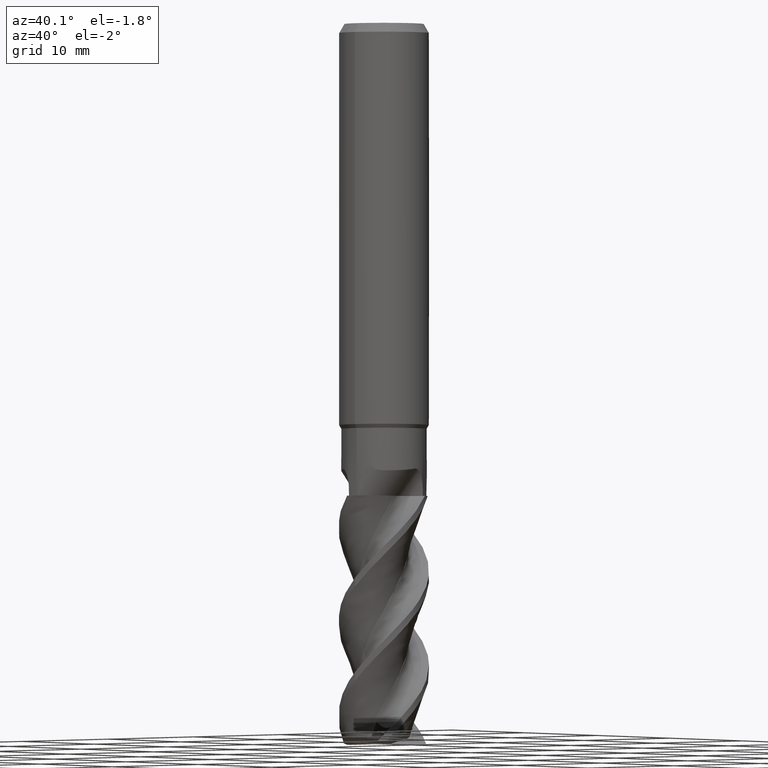
[diagram: clean part render]
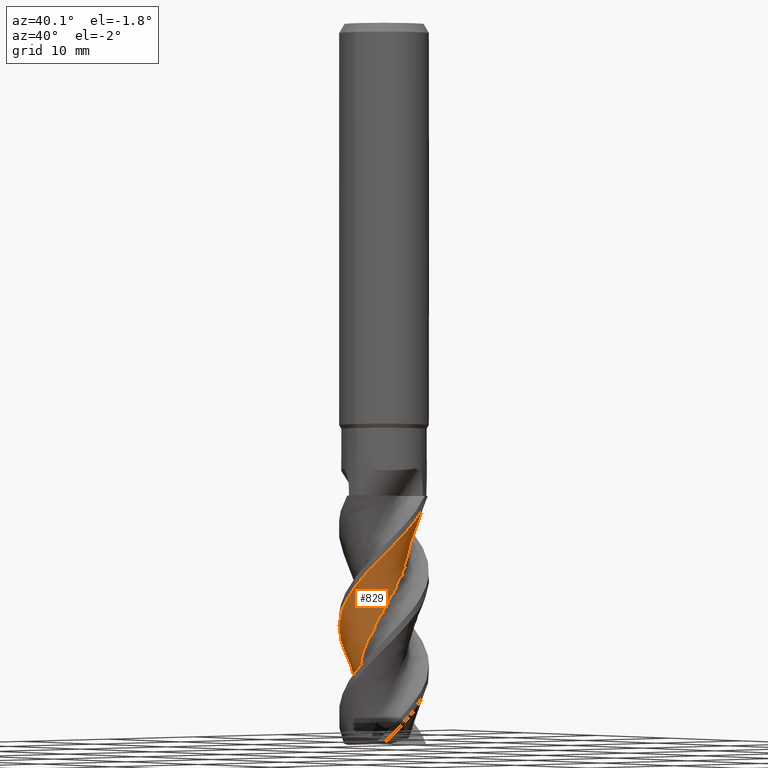
[diagram: same view with one face highlighted and labeled with its STEP entity id]
A machine part, auxiliary view. The second image highlights one B-rep face of the part: STEP entity #829.
In plain terms, the highlighted face is a freeform B-spline surface patch.
Its self-contained STEP definition (entity closure, byte-faithful):
#669=EDGE_CURVE('',#1279,#1359,#1627,.T.);
#707=EDGE_CURVE('',#1191,#891,#1669,.T.);
#729=VERTEX_POINT('',#1691);
#829=ADVANCED_FACE('',(#1797),#1798,.T.);
#891=VERTEX_POINT('',#1866);
#917=EDGE_CURVE('',#1231,#1175,#1897,.T.);
#1175=VERTEX_POINT('',#2174);
#1191=VERTEX_POINT('',#2193);
#1197=EDGE_CURVE('',#891,#729,#2199,.T.);
#1225=EDGE_CURVE('',#1359,#1191,#2232,.T.);
#1231=VERTEX_POINT('',#2238);
#1279=VERTEX_POINT('',#2293);
#1285=EDGE_CURVE('',#729,#1175,#2299,.T.);
#1327=EDGE_CURVE('',#1231,#1279,#2343,.T.);
#1359=VERTEX_POINT('',#2377);
#1627=B_SPLINE_CURVE_WITH_KNOTS('',3,(#4159,#4160,#4161,#4162,#4163,#4164,#4165,#4166,#4167,#4168,#4169,#4170,#4171,#4172,#4173,#4174,#4175,#4176,#4177,#4178,#4179,#4180,#4181,#4182,#4183,#4184,#4185,#4186,#4187,#4188,#4189,#4190,#4191,#4192,#4193,#4194,#4195,#4196,#4197,#4198,#4199,#4200,#4201,#4202,#4203,#4204,#4205,#4206,#4207,#4208,#4209,#4210),.UNSPECIFIED.,.F.,.F.,(4,2,2,2,2,2,2,2,2,2,2,2,2,2,2,2,2,2,2,2,2,2,2,2,2,4),(0.0,1.50812965564963,2.3019386029342,3.98700119968267,5.00262013638632,6.0516362022556,6.81230636880581,8.39051324420362,9.37146261800416,10.8609762145293,11.6836350831511,12.6656856658799,14.1349562226366,15.0286777271437,15.9162744446525,17.354946503498,18.2285737361278,19.1774514193152,20.1938867733299,20.5305683658628,21.151415034704,21.6692020742021,21.9225674008425,22.7656239546598,23.1177810033269,23.6173055241337),.UNSPECIFIED.);
#1669=B_SPLINE_CURVE_WITH_KNOTS('',3,(#4535,#4536,#4537,#4538,#4539,#4540,#4541,#4542,#4543,#4544,#4545,#4546,#4547,#4548,#4549,#4550,#4551,#4552,#4553,#4554,#4555,#4556,#4557,#4558,#4559,#4560,#4561,#4562,#4563,#4564,#4565,#4566,#4567,#4568,#4569,#4570,#4571,#4572,#4573,#4574,#4575,#4576,#4577,#4578,#4579,#4580,#4581,#4582,#4583,#4584,#4585,#4586),.UNSPECIFIED.,.F.,.F.,(4,2,2,2,2,2,2,2,2,2,2,2,2,2,2,2,2,2,2,2,2,2,2,2,2,4),(0.0,1.50812965564963,2.3019386029342,3.98700119968267,5.00262013638632,6.0516362022556,6.81230636880581,8.39051324420362,9.37146261800416,10.8609762145293,11.6836350831511,12.6656856658799,14.1349562226366,15.0286777271437,15.9162744446525,17.354946503498,18.2285737361278,19.1774514193152,20.1938867733299,20.5305683658628,21.151415034704,21.6692020742021,21.9225674008425,22.7656239546598,23.1177810033269,23.6173055241337),.UNSPECIFIED.);
#1691=CARTESIAN_POINT('',(0.418507498024745,2.48776908573931,-42.0));
#1797=FACE_OUTER_BOUND('',#5875,.T.);
#1798=B_SPLINE_SURFACE_WITH_KNOTS('',3,3,((#5876,#5877,#5878,#5879,#5880,#5881,#5882,#5883,#5884,#5885,#5886,#5887,#5888,#5889,#5890,#5891,#5892,#5893,#5894,#5895,#5896,#5897,#5898,#5899,#5900,#5901,#5902,#5903,#5904,#5905,#5906,#5907,#5908,#5909,#5910,#5911,#5912,#5913,#5914,#5915,#5916,#5917,#5918,#5919,#5920,#5921,#5922,#5923,#5924,#5925,#5926,#5927,#5928,#5929),(#5930,#5931,#5932,#5933,#5934,#5935,#5936,#5937,#5938,#5939,#5940,#5941,#5942,#5943,#5944,#5945,#5946,#5947,#5948,#5949,#5950,#5951,#5952,#5953,#5954,#5955,#5956,#5957,#5958,#5959,#5960,#5961,#5962,#5963,#5964,#5965,#5966,#5967,#5968,#5969,#5970,#5971,#5972,#5973,#5974,#5975,#5976,#5977,#5978,#5979,#5980,#5981,#5982,#5983),(#5984,#5985,#5986,#5987,#5988,#5989,#5990,#5991,#5992,#5993,#5994,#5995,#5996,#5997,#5998,#5999,#6000,#6001,#6002,#6003,#6004,#6005,#6006,#6007,#6008,#6009,#6010,#6011,#6012,#6013,#6014,#6015,#6016,#6017,#6018,#6019,#6020,#6021,#6022,#6023,#6024,#6025,#6026,#6027,#6028,#6029,#6030,#6031,#6032,#6033,#6034,#6035,#6036,#6037),(#6038,#6039,#6040,#6041,#6042,#6043,#6044,#6045,#6046,#6047,#6048,#6049,#6050,#6051,#6052,#6053,#6054,#6055,#6056,#6057,#6058,#6059,#6060,#6061,#6062,#6063,#6064,#6065,#6066,#6067,#6068,#6069,#6070,#6071,#6072,#6073,#6074,#6075,#6076,#6077,#6078,#6079,#6080,#6081,#6082,#6083,#6084,#6085,#6086,#6087,#6088,#6089,#6090,#6091),(#6092,#6093,#6094,#6095,#6096,#6097,#6098,#6099,#6100,#6101,#6102,#6103,#6104,#6105,#6106,#6107,#6108,#6109,#6110,#6111,#6112,#6113,#6114,#6115,#6116,#6117,#6118,#6119,#6120,#6121,#6122,#6123,#6124,#6125,#6126,#6127,#6128,#6129,#6130,#6131,#6132,#6133,#6134,#6135,#6136,#6137,#6138,#6139,#6140,#6141,#6142,#6143,#6144,#6145),(#6146,#6147,#6148,#6149,#6150,#6151,#6152,#6153,#6154,#6155,#6156,#6157,#6158,#6159,#6160,#6161,#6162,#6163,#6164,#6165,#6166,#6167,#6168,#6169,#6170,#6171,#6172,#6173,#6174,#6175,#6176,#6177,#6178,#6179,#6180,#6181,#6182,#6183,#6184,#6185,#6186,#6187,#6188,#6189,#6190,#6191,#6192,#6193,#6194,#6195,#6196,#6197,#6198,#6199),(#6200,#6201,#6202,#6203,#6204,#6205,#6206,#6207,#6208,#6209,#6210,#6211,#6212,#6213,#6214,#6215,#6216,#6217,#6218,#6219,#6220,#6221,#6222,#6223,#6224,#6225,#6226,#6227,#6228,#6229,#6230,#6231,#6232,#6233,#6234,#6235,#6236,#6237,#6238,#6239,#6240,#6241,#6242,#6243,#6244,#6245,#6246,#6247,#6248,#6249,#6250,#6251,#6252,#6253)),.UNSPECIFIED.,.F.,.F.,.F.,(4,1,1,1,4),(4,1,2,1,2,1,2,1,1,2,1,2,1,2,1,2,1,2,1,2,1,2,1,2,1,2,1,2,1,2,1,2,1,2,1,4),(-1.379010217161,-1.03425766287075,-0.689505108580499,-0.34475255429025,0.0),(0.0,0.596702157013119,1.19340431402624,1.79010647103936,2.38680862805248,3.58021294207871,4.77361725610495,5.66867049162463,6.56372372714431,7.16042588415743,8.35383019818367,9.5472345122099,10.7406388262361,11.9340431402624,13.1274474542886,14.3208517683149,15.5142560823411,16.7076603963673,17.9010647103936,19.0944690244198,20.287873338446,21.4812776524723,22.6746819664985,23.8680862805248,25.061490594551,26.2548949085772,27.4482992226035,28.6417035366297,29.8351078506559,31.0285121646822,32.2219164787084,33.4153207927347,34.6087251067609,35.8021294207871,36.9955337348134,38.1889380488396),.UNSPECIFIED.);
#1866=CARTESIAN_POINT('',(3.5963726505527,1.75080089340749,-42.0));
#1897=B_SPLINE_CURVE_WITH_KNOTS('',3,(#6508,#6509,#6510,#6511,#6512,#6513,#6514,#6515,#6516,#6517,#6518,#6519,#6520,#6521,#6522,#6523,#6524,#6525,#6526,#6527,#6528,#6529,#6530,#6531,#6532,#6533,#6534,#6535,#6536,#6537,#6538,#6539,#6540,#6541,#6542,#6543,#6544,#6545,#6546,#6547,#6548,#6549),.UNSPECIFIED.,.F.,.F.,(4,2,2,2,2,2,2,2,2,2,2,2,2,2,2,2,2,2,2,2,4),(0.0,1.96002317174539,2.79951533995057,4.84570067924374,5.63728254431896,7.64417012488495,8.09698610778007,9.81930928518283,10.8335941976609,12.7666662784117,12.8188379631395,14.1024985782909,14.7575771372344,15.1105821677996,16.5308145481242,17.1155967276321,18.6108530709952,19.2000942890906,20.0998360947661,20.3365268003646,21.0120244638364),.UNSPECIFIED.);
#2174=CARTESIAN_POINT('',(-0.15968039562833,2.25531079107162,-42.0));
#2193=CARTESIAN_POINT('',(2.39958012328243E-009,-3.99993702456214,-50.1083791086376));
#2199=B_SPLINE_CURVE_WITH_KNOTS('',3,(#9870,#9871,#9872,#9873,#9874,#9875,#9876,#9877,#9878,#9879),.UNSPECIFIED.,.F.,.F.,(4,2,2,2,4),(0.0,1.29194289761675,2.58380881293861,3.56196822561833,4.54010118664427),.UNSPECIFIED.);
#2232=B_SPLINE_CURVE_WITH_KNOTS('',3,(#9981,#9982,#9983,#9984,#9985,#9986,#9987,#9988,#9989,#9990,#9991,#9992,#9993,#9994,#9995,#9996,#9997,#9998,#9999,#10000,#10001,#10002,#10003,#10004,#10005,#10006,#10007,#10008,#10009,#10010,#10011,#10012,#10013,#10014,#10015,#10016,#10017,#10018,#10019,#10020,#10021,#10022,#10023,#10024,#10025,#10026,#10027,#10028,#10029,#10030,#10031,#10032),.UNSPECIFIED.,.F.,.F.,(4,2,2,2,2,2,2,2,2,2,2,2,2,2,2,2,2,2,2,2,2,2,2,2,2,4),(0.0,1.50812965564963,2.3019386029342,3.98700119968267,5.00262013638632,6.0516362022556,6.81230636880581,8.39051324420362,9.37146261800416,10.8609762145293,11.6836350831511,12.6656856658799,14.1349562226366,15.0286777271437,15.9162744446525,17.354946503498,18.2285737361278,19.1774514193152,20.1938867733299,20.5305683658628,21.151415034704,21.6692020742021,21.9225674008425,22.7656239546598,23.1177810033269,23.6173055241337),.UNSPECIFIED.);
#2238=CARTESIAN_POINT('',(-1.89454232177125,1.23379354579571,-63.4433879242293));
#2293=CARTESIAN_POINT('',(1.20785798603112,3.8132766733043,-63.8973059111609));
#2299=B_SPLINE_CURVE_WITH_KNOTS('',3,(#10145,#10146,#10147,#10148,#10149,#10150,#10151,#10152,#10153,#10154),.UNSPECIFIED.,.F.,.F.,(4,2,2,2,4),(0.0,1.29194289761675,2.58380881293861,3.56196822561833,4.54010118664427),.UNSPECIFIED.);
#2343=B_SPLINE_CURVE_WITH_KNOTS('',3,(#10363,#10364,#10365,#10366,#10367,#10368,#10369,#10370,#10371,#10372,#10373,#10374),.UNSPECIFIED.,.F.,.F.,(4,2,2,2,2,4),(0.0,1.18920040398311,2.29786910679007,3.46950499188715,4.30508404220789,5.21901623330974),.UNSPECIFIED.);
#2377=CARTESIAN_POINT('',(2.52708501185999E-010,3.99999434925726,-62.6624873406515));
#4159=CARTESIAN_POINT('',(1.21038747083636,3.81247454685829,-63.9));
#4160=CARTESIAN_POINT('',(0.8741518522595,3.91922118437871,-63.5418547880081));
#4161=CARTESIAN_POINT('',(0.522930222425139,3.98175344153569,-63.1796755850753));
#4162=CARTESIAN_POINT('',(-0.0223508028768974,4.0043567461851,-62.6393706705916));
#4163=CARTESIAN_POINT('',(-0.206804944346969,3.99901686122944,-62.4628641327863));
#4164=CARTESIAN_POINT('',(-0.787833898291767,3.94166996729279,-61.888839754451));
#4165=CARTESIAN_POINT('',(-1.17116222130024,3.84449225816149,-61.4876272981578));
#4166=CARTESIAN_POINT('',(-1.74810193530611,3.60543804762064,-60.8527715408216));
#4167=CARTESIAN_POINT('',(-1.95846976232267,3.49588875863075,-60.6141641997542));
#4168=CARTESIAN_POINT('',(-2.36687817437813,3.23396352618658,-60.1361353856852));
#4169=CARTESIAN_POINT('',(-2.55936504537128,3.08403181802421,-59.9034243646064));
#4170=CARTESIAN_POINT('',(-2.87163489390256,2.79034387585258,-59.4758169871923));
#4171=CARTESIAN_POINT('',(-2.99375279731445,2.65878134041894,-59.2945149359466));
#4172=CARTESIAN_POINT('',(-3.33944504067208,2.23270847696821,-58.7367625425849));
#4173=CARTESIAN_POINT('',(-3.5337674192665,1.91160153154349,-58.3560745385917));
#4174=CARTESIAN_POINT('',(-3.77276797293577,1.34938208187908,-57.754857315383));
#4175=CARTESIAN_POINT('',(-3.84460094901303,1.12899868311139,-57.5334403550166));
#4176=CARTESIAN_POINT('',(-3.97830168950724,0.549162795380832,-56.9402773000279));
#4177=CARTESIAN_POINT('',(-4.01114406294739,0.19190664192438,-56.5748745802272));
#4178=CARTESIAN_POINT('',(-3.98861496310292,-0.35945898627324,-56.0155868769391));
#4179=CARTESIAN_POINT('',(-3.96611241395141,-0.556192553200829,-55.8170760874915));
#4180=CARTESIAN_POINT('',(-3.88395562759898,-0.985465420164064,-55.3866537264021));
#4181=CARTESIAN_POINT('',(-3.8195147778647,-1.21181020293169,-55.1620247960107));
#4182=CARTESIAN_POINT('',(-3.60469480004076,-1.77046140263526,-54.5654319391119));
#4183=CARTESIAN_POINT('',(-3.43206709010472,-2.08492342030304,-54.2000748531259));
#4184=CARTESIAN_POINT('',(-3.09318275143932,-2.54530790777923,-53.6206823038342));
#4185=CARTESIAN_POINT('',(-2.9500477954842,-2.7101988017186,-53.4021096774569));
#4186=CARTESIAN_POINT('',(-2.63629933014022,-3.01615804488363,-52.9723344611993));
#4187=CARTESIAN_POINT('',(-2.46943937556779,-3.15443799908028,-52.7645982912688));
#4188=CARTESIAN_POINT('',(-1.99347052832356,-3.48631951099695,-52.1860875741831));
#4189=CARTESIAN_POINT('',(-1.6741518217168,-3.6501018846685,-51.8205540795434));
#4190=CARTESIAN_POINT('',(-1.13555303737836,-3.84144401231891,-51.2413176490097));
#4191=CARTESIAN_POINT('',(-0.92485169297897,-3.89774456184285,-51.0230502962612));
#4192=CARTESIAN_POINT('',(-0.473939283509634,-3.97891890055219,-50.5738545818159));
#4193=CARTESIAN_POINT('',(-0.16803568635221,-4.01299338034333,-50.2790784527439));
#4194=CARTESIAN_POINT('',(0.585977899683751,-3.9759960320667,-49.5174598058809));
#4195=CARTESIAN_POINT('',(0.972072038552208,-3.89982518032431,-49.1159233089956));
#4196=CARTESIAN_POINT('',(1.46437268169898,-3.72450818047864,-48.594021999962));
#4197=CARTESIAN_POINT('',(1.5854283558847,-3.67466966807075,-48.4648085888449));
#4198=CARTESIAN_POINT('',(1.92426379359227,-3.51505455111566,-48.1002429832503));
#4199=CARTESIAN_POINT('',(2.2402212755054,-3.34318691317403,-47.7518124381671));
#4200=CARTESIAN_POINT('',(2.86103180230965,-2.81962091543242,-46.9270328093645));
#4201=CARTESIAN_POINT('',(3.11113785946329,-2.54177191696936,-46.5470892186259));
#4202=CARTESIAN_POINT('',(3.42237593309564,-2.07853555391959,-45.9954055877984));
#4203=CARTESIAN_POINT('',(3.51224725554091,-1.92269400779076,-45.8234838900205));
#4204=CARTESIAN_POINT('',(3.85944313189888,-1.21351888569407,-45.0470642260816));
#4205=CARTESIAN_POINT('',(3.99808540545376,-0.616361653904153,-44.4202559801586));
#4206=CARTESIAN_POINT('',(4.00064441262114,0.240502201791341,-43.5721671007583));
#4207=CARTESIAN_POINT('',(3.97798095309816,0.488907116844436,-43.3349607499648));
#4208=CARTESIAN_POINT('',(3.86502777814506,1.09077390014403,-42.7257538633961));
#4209=CARTESIAN_POINT('',(3.7518929297841,1.43134578164647,-42.3604698335872));
#4210=CARTESIAN_POINT('',(3.59637265055272,1.75080089340747,-42.0));
#4535=CARTESIAN_POINT('',(1.21038747083636,3.81247454685829,-63.9));
#4536=CARTESIAN_POINT('',(0.8741518522595,3.91922118437871,-63.5418547880081));
#4537=CARTESIAN_POINT('',(0.522930222425139,3.98175344153569,-63.1796755850753));
#4538=CARTESIAN_POINT('',(-0.0223508028768974,4.0043567461851,-62.6393706705916));
#4539=CARTESIAN_POINT('',(-0.206804944346969,3.99901686122944,-62.4628641327863));
#4540=CARTESIAN_POINT('',(-0.787833898291767,3.94166996729279,-61.888839754451));
#4541=CARTESIAN_POINT('',(-1.17116222130024,3.84449225816149,-61.4876272981578));
#4542=CARTESIAN_POINT('',(-1.74810193530611,3.60543804762064,-60.8527715408216));
#4543=CARTESIAN_POINT('',(-1.95846976232267,3.49588875863075,-60.6141641997542));
#4544=CARTESIAN_POINT('',(-2.36687817437813,3.23396352618658,-60.1361353856852));
#4545=CARTESIAN_POINT('',(-2.55936504537128,3.08403181802421,-59.9034243646064));
#4546=CARTESIAN_POINT('',(-2.87163489390256,2.79034387585258,-59.4758169871923));
#4547=CARTESIAN_POINT('',(-2.99375279731445,2.65878134041894,-59.2945149359466));
#4548=CARTESIAN_POINT('',(-3.33944504067208,2.23270847696821,-58.7367625425849));
#4549=CARTESIAN_POINT('',(-3.5337674192665,1.91160153154349,-58.3560745385917));
#4550=CARTESIAN_POINT('',(-3.77276797293577,1.34938208187908,-57.754857315383));
#4551=CARTESIAN_POINT('',(-3.84460094901303,1.12899868311139,-57.5334403550166));
#4552=CARTESIAN_POINT('',(-3.97830168950724,0.549162795380832,-56.9402773000279));
#4553=CARTESIAN_POINT('',(-4.01114406294739,0.19190664192438,-56.5748745802272));
#4554=CARTESIAN_POINT('',(-3.98861496310292,-0.35945898627324,-56.0155868769391));
#4555=CARTESIAN_POINT('',(-3.96611241395141,-0.556192553200829,-55.8170760874915));
#4556=CARTESIAN_POINT('',(-3.88395562759898,-0.985465420164064,-55.3866537264021));
#4557=CARTESIAN_POINT('',(-3.8195147778647,-1.21181020293169,-55.1620247960107));
#4558=CARTESIAN_POINT('',(-3.60469480004076,-1.77046140263526,-54.5654319391119));
#4559=CARTESIAN_POINT('',(-3.43206709010472,-2.08492342030304,-54.2000748531259));
#4560=CARTESIAN_POINT('',(-3.09318275143932,-2.54530790777923,-53.6206823038342));
#4561=CARTESIAN_POINT('',(-2.9500477954842,-2.7101988017186,-53.4021096774569));
#4562=CARTESIAN_POINT('',(-2.63629933014022,-3.01615804488363,-52.9723344611993));
#4563=CARTESIAN_POINT('',(-2.46943937556779,-3.15443799908028,-52.7645982912688));
#4564=CARTESIAN_POINT('',(-1.99347052832356,-3.48631951099695,-52.1860875741831));
#4565=CARTESIAN_POINT('',(-1.6741518217168,-3.6501018846685,-51.8205540795434));
#4566=CARTESIAN_POINT('',(-1.13555303737836,-3.84144401231891,-51.2413176490097));
#4567=CARTESIAN_POINT('',(-0.92485169297897,-3.89774456184285,-51.0230502962612));
#4568=CARTESIAN_POINT('',(-0.473939283509634,-3.97891890055219,-50.5738545818159));
#4569=CARTESIAN_POINT('',(-0.16803568635221,-4.01299338034333,-50.2790784527439));
#4570=CARTESIAN_POINT('',(0.585977899683751,-3.9759960320667,-49.5174598058809));
#4571=CARTESIAN_POINT('',(0.972072038552208,-3.89982518032431,-49.1159233089956));
#4572=CARTESIAN_POINT('',(1.46437268169898,-3.72450818047864,-48.594021999962));
#4573=CARTESIAN_POINT('',(1.5854283558847,-3.67466966807075,-48.4648085888449));
#4574=CARTESIAN_POINT('',(1.92426379359227,-3.51505455111566,-48.1002429832503));
#4575=CARTESIAN_POINT('',(2.2402212755054,-3.34318691317403,-47.7518124381671));
#4576=CARTESIAN_POINT('',(2.86103180230965,-2.81962091543242,-46.9270328093645));
#4577=CARTESIAN_POINT('',(3.11113785946329,-2.54177191696936,-46.5470892186259));
#4578=CARTESIAN_POINT('',(3.42237593309564,-2.07853555391959,-45.9954055877984));
#4579=CARTESIAN_POINT('',(3.51224725554091,-1.92269400779076,-45.8234838900205));
#4580=CARTESIAN_POINT('',(3.85944313189888,-1.21351888569407,-45.0470642260816));
#4581=CARTESIAN_POINT('',(3.99808540545376,-0.616361653904153,-44.4202559801586));
#4582=CARTESIAN_POINT('',(4.00064441262114,0.240502201791341,-43.5721671007583));
#4583=CARTESIAN_POINT('',(3.97798095309816,0.488907116844436,-43.3349607499648));
#4584=CARTESIAN_POINT('',(3.86502777814506,1.09077390014403,-42.7257538633961));
#4585=CARTESIAN_POINT('',(3.7518929297841,1.43134578164647,-42.3604698335872));
#4586=CARTESIAN_POINT('',(3.59637265055272,1.75080089340747,-42.0));
#5875=EDGE_LOOP('',(#11004,#11005,#11006,#11007,#11008,#11009,#11010));
#5876=CARTESIAN_POINT('',(2.8849931731964,-2.99706763184026,-72.0));
#5877=CARTESIAN_POINT('',(2.92240958767133,-2.96097423754923,-71.8020813202914));
#5878=CARTESIAN_POINT('',(3.06594015749176,-2.82276050783471,-71.4062905601514));
#5879=CARTESIAN_POINT('',(3.32359760600317,-2.51229291029011,-71.0105017283267));
#5880=CARTESIAN_POINT('',(3.60103795574579,-2.09423510893513,-70.61462246108));
#5881=CARTESIAN_POINT('',(3.82280958906737,-1.68015121268389,-70.2187330544913));
#5882=CARTESIAN_POINT('',(3.96053057586659,-1.28438438829067,-69.8228827720323));
#5883=CARTESIAN_POINT('',(4.11969721874899,-0.699448480237136,-69.2291634437986));
#5884=CARTESIAN_POINT('',(4.21477081020318,0.0887673868397143,-68.4375244686398));
#5885=CARTESIAN_POINT('',(4.08270498064053,0.900199756865205,-67.6458884122936));
#5886=CARTESIAN_POINT('',(3.8468001680062,1.61259525637296,-66.9531593066781));
#5887=CARTESIAN_POINT('',(3.58328897988386,2.17530080389226,-66.3593807572199));
#5888=CARTESIAN_POINT('',(3.09220866691194,2.81641636323863,-65.5677109106745));
#5889=CARTESIAN_POINT('',(2.70627431810526,3.16483763355047,-65.0729294176987));
#5890=CARTESIAN_POINT('',(2.20092786844225,3.55414342423164,-64.4791848023263));
#5891=CARTESIAN_POINT('',(1.48266860804059,3.94736514396983,-63.6875020067818));
#5892=CARTESIAN_POINT('',(0.683476002120714,4.12411233065391,-62.8958552330718));
#5893=CARTESIAN_POINT('',(-0.164999296449228,4.1771653309235,-62.1041865201155));
#5894=CARTESIAN_POINT('',(-0.978992798415299,4.1012441212117,-61.3124981049296));
#5895=CARTESIAN_POINT('',(-1.73988549079389,3.80112759892892,-60.5208519008651));
#5896=CARTESIAN_POINT('',(-2.47349072591814,3.37016522208297,-59.7291850858659));
#5897=CARTESIAN_POINT('',(-3.10621747906796,2.85140218942379,-58.9374974814654));
#5898=CARTESIAN_POINT('',(-3.56891787448111,2.17680246595138,-58.1458509698202));
#5899=CARTESIAN_POINT('',(-3.93569171012349,1.40939832080377,-57.3541839688199));
#5900=CARTESIAN_POINT('',(-4.16984052214256,0.62562809525216,-56.5624964070769));
#5901=CARTESIAN_POINT('',(-4.17596313225788,-0.192381101712935,-55.7708499939011));
#5902=CARTESIAN_POINT('',(-4.05062076821258,-1.03371751962373,-54.9791829406379));
#5903=CARTESIAN_POINT('',(-3.8061798808445,-1.8143838909242,-54.1874953020299));
#5904=CARTESIAN_POINT('',(-3.35359897476936,-2.49580601125201,-53.3958488670571));
#5905=CARTESIAN_POINT('',(-2.77901144280356,-3.1230100832054,-52.6041818508217));
#5906=CARTESIAN_POINT('',(-2.13964875050445,-3.63330432390831,-51.8124942430695));
#5907=CARTESIAN_POINT('',(-1.38328759678152,-3.94489417099255,-51.0208478086118));
#5908=CARTESIAN_POINT('',(-0.556137843774475,-4.1432847124846,-50.2291807769718));
#5909=CARTESIAN_POINT('',(0.259290965584354,-4.20853475407957,-49.4374931628747));
#5910=CARTESIAN_POINT('',(1.06052750441267,-4.04363193081212,-48.6458467367247));
#5911=CARTESIAN_POINT('',(1.85710862229454,-3.74529688726285,-47.8541797150624));
#5912=CARTESIAN_POINT('',(2.56948168767498,-3.34316560611676,-47.0624920929035));
#5913=CARTESIAN_POINT('',(3.14131527453687,-2.75822557858918,-46.2708456519592));
#5914=CARTESIAN_POINT('',(3.63463889580865,-2.06530633567971,-45.4791786316819));
#5915=CARTESIAN_POINT('',(4.0001176073127,-1.33344884477022,-44.6874910452033));
#5916=CARTESIAN_POINT('',(4.14683505851814,-0.528636866857343,-43.8958445795726));
#5917=CARTESIAN_POINT('',(4.16804481245918,0.321764012653659,-43.1041774417391));
#5918=CARTESIAN_POINT('',(4.06148620294524,1.13279750277838,-42.312489753647));
#5919=CARTESIAN_POINT('',(3.73289269576683,1.88179784161322,-41.5208436454148));
#5920=CARTESIAN_POINT('',(3.27479381990849,2.59841922816568,-40.7291772343719));
#5921=CARTESIAN_POINT('',(2.73265145984131,3.211205045175,-39.9374897221193));
#5922=CARTESIAN_POINT('',(2.04107199234359,3.6482319949096,-39.1458417326105));
#5923=CARTESIAN_POINT('',(1.260621368899,3.98582600081281,-38.3541723630751));
#5924=CARTESIAN_POINT('',(0.46903430206257,4.19034798525545,-37.5624849927617));
#5925=CARTESIAN_POINT('',(-0.349883444735772,4.16585144646725,-36.7708438884744));
#5926=CARTESIAN_POINT('',(-1.18859483421239,4.00808628305623,-35.9791834142589));
#5927=CARTESIAN_POINT('',(-1.95977090177284,3.73298195922747,-35.1874939124835));
#5928=CARTESIAN_POINT('',(-2.61628087445462,3.25970504587531,-34.3958454903467));
#5929=CARTESIAN_POINT('',(-2.9147415679886,2.96632514949731,-34.0000165176675));
#5930=CARTESIAN_POINT('',(3.05673647652492,-2.65803045875232,-72.0));
#5931=CARTESIAN_POINT('',(3.08881265138201,-2.61923192977791,-71.8020532782205));
#5932=CARTESIAN_POINT('',(3.21451129292511,-2.47213389690455,-71.4064025136208));
#5933=CARTESIAN_POINT('',(3.43748398654902,-2.14900118127136,-71.010787631407));
#5934=CARTESIAN_POINT('',(3.67115088266584,-1.72002298031144,-70.6147640019621));
#5935=CARTESIAN_POINT('',(3.8509357996161,-1.29955705248755,-70.2186859232659));
#5936=CARTESIAN_POINT('',(3.95039645889868,-0.904013822762281,-69.8227725339661));
#5937=CARTESIAN_POINT('',(4.05421306388445,-0.323253299499854,-69.2291526250204));
#5938=CARTESIAN_POINT('',(4.07819090773911,0.449000099837652,-68.4376082666843));
#5939=CARTESIAN_POINT('',(3.88024383333384,1.22419977529714,-67.6460819923197));
#5940=CARTESIAN_POINT('',(3.59040247033283,1.89465776045226,-66.9532850013498));
#5941=CARTESIAN_POINT('',(3.28647682923401,2.4174863387445,-66.3594105296844));
#5942=CARTESIAN_POINT('',(2.75509513244511,2.99656856432227,-65.5677303288982));
#5943=CARTESIAN_POINT('',(2.35096807034467,3.30112812364852,-65.0729837887939));
#5944=CARTESIAN_POINT('',(1.82759365951875,3.6351684558251,-64.4792580231333));
#5945=CARTESIAN_POINT('',(1.09737839187765,3.9544115074051,-63.6875213360801));
#5946=CARTESIAN_POINT('',(0.307424506233549,4.0568221356504,-62.8959439642783));
#5947=CARTESIAN_POINT('',(-0.519742700908749,4.03539416655039,-62.1042696481766));
#5948=CARTESIAN_POINT('',(-1.30229451840053,3.89157186401081,-61.3125082659024));
#5949=CARTESIAN_POINT('',(-2.01399210859671,3.53502510625387,-60.5209330384195));
#5950=CARTESIAN_POINT('',(-2.68822888318827,3.05420360555053,-59.7292668893013));
#5951=CARTESIAN_POINT('',(-3.25685804398001,2.49672222913092,-58.9375090660264));
#5952=CARTESIAN_POINT('',(-3.64720179959939,1.80288309146156,-58.1459325703833));
#5953=CARTESIAN_POINT('',(-3.93689597215821,1.02737492674022,-57.354265666829));
#5954=CARTESIAN_POINT('',(-4.09627283837273,0.247372474786573,-56.5625080290744));
#5955=CARTESIAN_POINT('',(-4.03165785729376,-0.546104581153464,-55.7709319457535));
#5956=CARTESIAN_POINT('',(-3.83788833590389,-1.35103197998053,-54.9792647950443));
#5957=CARTESIAN_POINT('',(-3.53357813065847,-2.08674015487314,-54.1875068174522));
#5958=CARTESIAN_POINT('',(-3.03609232162545,-2.7082531647644,-53.3959306451377));
#5959=CARTESIAN_POINT('',(-2.42515952271145,-3.26699736584365,-52.6042636613844));
#5960=CARTESIAN_POINT('',(-1.76132719779889,-3.70653314515291,-51.8125058190114));
#5961=CARTESIAN_POINT('',(-1.00126421021923,-3.94334408196106,-51.020929654302));
#5962=CARTESIAN_POINT('',(-0.182291229851993,-4.06465760103049,-50.2292625901799));
#5963=CARTESIAN_POINT('',(0.613831773969868,-4.05756964199043,-49.4375047232473));
#5964=CARTESIAN_POINT('',(1.37629974459137,-3.8286152328714,-48.6459285987414));
#5965=CARTESIAN_POINT('',(2.12298067964239,-3.47096937889954,-47.8542615770791));
#5966=CARTESIAN_POINT('',(2.77888072606792,-3.01968200437155,-47.0625036916268));
#5967=CARTESIAN_POINT('',(3.28274698846402,-2.40334351065436,-46.2709274879366));
#5968=CARTESIAN_POINT('',(3.70153007730039,-1.68918264963693,-45.4792604676593));
#5969=CARTESIAN_POINT('',(3.99269955231624,-0.948176368775575,-44.6875026913733));
#5970=CARTESIAN_POINT('',(4.06551075130253,-0.155366444115203,-43.8959264074791));
#5971=CARTESIAN_POINT('',(4.01304804390771,0.670934030622876,-43.1042589123436));
#5972=CARTESIAN_POINT('',(3.83978389471107,1.44797501234763,-42.3125008373635));
#5973=CARTESIAN_POINT('',(3.45665803726552,2.14568875596107,-41.520926061539));
#5974=CARTESIAN_POINT('',(2.95098438161989,2.80112763014299,-40.7292615669342));
#5975=CARTESIAN_POINT('',(2.37255912064148,3.34840909416161,-39.9375037837582));
#5976=CARTESIAN_POINT('',(1.66447451971821,3.71240189905105,-39.1459208353621));
#5977=CARTESIAN_POINT('',(0.87882307249493,3.9726825859633,-38.3542442548222));
#5978=CARTESIAN_POINT('',(0.0937993348992279,4.10265871673381,-37.5624888174572));
#5979=CARTESIAN_POINT('',(-0.697919626299012,4.00829495443222,-36.7709351394703));
#5980=CARTESIAN_POINT('',(-1.49752989634323,3.78333842960754,-35.979292855176));
#5981=CARTESIAN_POINT('',(-2.22140341746646,3.45012756992181,-35.1875194353338));
#5982=CARTESIAN_POINT('',(-2.81692820582236,2.93468078666018,-34.3959078951403));
#5983=CARTESIAN_POINT('',(-3.08104901718555,2.62458870698934,-34.0000728808087));
#5984=CARTESIAN_POINT('',(3.28217883106289,-1.92026436313011,-72.0));
#5985=CARTESIAN_POINT('',(3.30263431453089,-1.87791489809233,-71.8020009420561));
#5986=CARTESIAN_POINT('',(3.38958132046001,-1.71925686485717,-71.4066114576921));
#5987=CARTESIAN_POINT('',(3.53878493049656,-1.38286902220744,-71.0113212246698));
#5988=CARTESIAN_POINT('',(3.68111486707731,-0.947288105619674,-70.6150281666361));
#5989=CARTESIAN_POINT('',(3.77471544444227,-0.528673175952914,-70.2185979607475));
#5990=CARTESIAN_POINT('',(3.79774268563915,-0.14689358178066,-69.8225667899253));
#5991=CARTESIAN_POINT('',(3.79232610326453,0.406252596443882,-69.2291324369838));
#5992=CARTESIAN_POINT('',(3.67968571196144,1.1218401260142,-68.4377646614483));
#5993=CARTESIAN_POINT('',(3.36260313572991,1.80165334701806,-67.6464432785252));
#5994=CARTESIAN_POINT('',(2.97949835257297,2.36947402317733,-66.9535195916753));
#5995=CARTESIAN_POINT('',(2.60863293725907,2.79849221730007,-66.3594660947617));
#5996=CARTESIAN_POINT('',(2.01824912483558,3.23949617206441,-65.5677665698732));
#5997=CARTESIAN_POINT('',(1.59300718527589,3.45001112565282,-65.0730852639677));
#5998=CARTESIAN_POINT('',(1.05281645579505,3.66725954125146,-64.4793946785276));
#5999=CARTESIAN_POINT('',(0.324440397545746,3.83440217717803,-63.6875574136088));
#6000=CARTESIAN_POINT('',(-0.421165475467666,3.7913735407902,-62.8961095624546));
#6001=CARTESIAN_POINT('',(-1.17979863229181,3.62841827235698,-62.1044247986951));
#6002=CARTESIAN_POINT('',(-1.87584184691892,3.35975380122778,-61.3125272378856));
#6003=CARTESIAN_POINT('',(-2.46952079159659,2.90748282540866,-60.5210844480187));
#6004=CARTESIAN_POINT('',(-3.00768180861722,2.34761857522853,-59.7294195838109));
#6005=CARTESIAN_POINT('',(-3.43465565996733,1.73501923097328,-58.9375306738999));
#6006=CARTESIAN_POINT('',(-3.67360763513249,1.02788971752679,-58.14608486997));
#6007=CARTESIAN_POINT('',(-3.80634093046183,0.263003133386899,-57.3544181387319));
#6008=CARTESIAN_POINT('',(-3.81750365405885,-0.483440336735202,-56.5625297200422));
#6009=CARTESIAN_POINT('',(-3.61996935619615,-1.20323891664839,-55.7710849003343));
#6010=CARTESIAN_POINT('',(-3.30203452978319,-1.91154116820153,-54.9794175594864));
#6011=CARTESIAN_POINT('',(-2.8936481735943,-2.5365065106771,-54.1875283051801));
#6012=CARTESIAN_POINT('',(-2.32721495218721,-3.02258686824793,-53.3960832834235));
#6013=CARTESIAN_POINT('',(-1.66742809158355,-3.43177826365338,-52.6044163359532));
#6014=CARTESIAN_POINT('',(-0.979289987502677,-3.72129786484133,-51.8125274358845));
#6015=CARTESIAN_POINT('',(-0.237851072837686,-3.80728098387813,-51.021082394468));
#6016=CARTESIAN_POINT('',(0.537943719198213,-3.77730538218334,-50.2294152939873));
#6017=CARTESIAN_POINT('',(1.27028260828831,-3.63227863422201,-49.4375263099627));
#6018=CARTESIAN_POINT('',(1.93292982674607,-3.28873023027771,-48.6460813472098));
#6019=CARTESIAN_POINT('',(2.55917956375053,-2.82984514416306,-47.8544143941361));
#6020=CARTESIAN_POINT('',(3.08503869667235,-2.29991313545168,-47.0625253205088));
#6021=CARTESIAN_POINT('',(3.44205880675635,-1.64444147612159,-46.2710802244501));
#6022=CARTESIAN_POINT('',(3.70438605943303,-0.913746462172689,-45.4794131994782));
#6023=CARTESIAN_POINT('',(3.84377112786475,-0.180308199415672,-44.6875244475775));
#6024=CARTESIAN_POINT('',(3.77296534174768,0.562777507809874,-43.8960790881001));
#6025=CARTESIAN_POINT('',(3.58156401938414,1.31524138204266,-43.104411003074));
#6026=CARTESIAN_POINT('',(3.28673632957685,2.00108886639352,-42.3125214926213));
#6027=CARTESIAN_POINT('',(2.81240949041901,2.57726204227273,-41.5210799015512));
#6028=CARTESIAN_POINT('',(2.23289260696068,3.09379257800074,-40.7294189375103));
#6029=CARTESIAN_POINT('',(1.60470927703316,3.49745319961756,-39.9375300147686));
#6030=CARTESIAN_POINT('',(0.889037993717682,3.70965107256386,-39.1460685171719));
#6031=CARTESIAN_POINT('',(0.119895133645489,3.81351405634203,-38.3543783808744));
#6032=CARTESIAN_POINT('',(-0.626057891078445,3.79670118948772,-37.5624959942119));
#6033=CARTESIAN_POINT('',(-1.33906868938732,3.5720867470127,-36.7711054169932));
#6034=CARTESIAN_POINT('',(-2.03710037386258,3.22637319073872,-35.9794971379968));
#6035=CARTESIAN_POINT('',(-2.64615647978408,2.79342725009902,-35.1875671175961));
#6036=CARTESIAN_POINT('',(-3.10504869081945,2.21487701224912,-34.3960242401265));
#6037=CARTESIAN_POINT('',(-3.29468152100392,1.88331668585398,-34.0001780738934));
#6038=CARTESIAN_POINT('',(3.22642972929685,-0.764386492587032,-72.0));
#6039=CARTESIAN_POINT('',(3.22867879652344,-0.722915214450101,-71.801942898766));
#6040=CARTESIAN_POINT('',(3.25505529362475,-0.56758287073971,-71.4068431860021));
#6041=CARTESIAN_POINT('',(3.29339105410769,-0.249880443619955,-71.0119130052929));
#6042=CARTESIAN_POINT('',(3.30342337981473,0.148716429880288,-70.6153211367236));
#6043=CARTESIAN_POINT('',(3.27628668590456,0.521024600703803,-70.2185004062316));
#6044=CARTESIAN_POINT('',(3.19838246727341,0.844622639395658,-69.8223386110116));
#6045=CARTESIAN_POINT('',(3.05274948009644,1.30340396836301,-69.2291100458886));
#6046=CARTESIAN_POINT('',(2.7759587062648,1.86972790210387,-68.4379381103792));
#6047=CARTESIAN_POINT('',(2.33903839738532,2.35447488136144,-67.6468439636695));
#6048=CARTESIAN_POINT('',(1.87629836042342,2.7301089953486,-66.9537797618376));
#6049=CARTESIAN_POINT('',(1.45848659397054,2.9927480659579,-66.3595277222948));
#6050=CARTESIAN_POINT('',(0.854805622971884,3.2088993445464,-65.567806762596));
#6051=CARTESIAN_POINT('',(0.447431974187719,3.27593665676328,-65.0731978046594));
#6052=CARTESIAN_POINT('',(-0.0572893704975033,3.31977185261282,-64.479546235733));
#6053=CARTESIAN_POINT('',(-0.705957413962973,3.27311041237994,-63.6875974233948));
#6054=CARTESIAN_POINT('',(-1.31521809233119,3.0472329148676,-62.8962932222817));
#6055=CARTESIAN_POINT('',(-1.9053432845234,2.7192134972129,-62.1045968641124));
#6056=CARTESIAN_POINT('',(-2.41596089258606,2.31815377236834,-61.312548271132));
#6057=CARTESIAN_POINT('',(-2.79449025596425,1.79057132757614,-60.5212523871835));
#6058=CARTESIAN_POINT('',(-3.10046562362911,1.18810117242556,-59.7295889102715));
#6059=CARTESIAN_POINT('',(-3.29950588637017,0.569501839509505,-58.9375546485857));
#6060=CARTESIAN_POINT('',(-3.31798390669674,-0.0796389996541078,-58.1462537750594));
#6061=CARTESIAN_POINT('',(-3.23450347854714,-0.749954438122141,-57.3545872394173));
#6062=CARTESIAN_POINT('',(-3.05343002069758,-1.37387791906762,-56.5625537753546));
#6063=CARTESIAN_POINT('',(-2.70559246391609,-1.92226964954161,-55.7712545338172));
#6064=CARTESIAN_POINT('',(-2.26134683700444,-2.43120685054478,-54.9795869826316));
#6065=CARTESIAN_POINT('',(-1.76216902627098,-2.84706039463761,-54.1875521474759));
#6066=CARTESIAN_POINT('',(-1.16705655178811,-3.10698118661127,-53.3962525433219));
#6067=CARTESIAN_POINT('',(-0.514116939409905,-3.28026486829951,-52.6045856822334));
#6068=CARTESIAN_POINT('',(0.132281479932222,-3.34566804682602,-51.8125513966466));
#6069=CARTESIAN_POINT('',(0.770960604849383,-3.22815326066844,-51.0212517940523));
#6070=CARTESIAN_POINT('',(1.40909599556425,-3.00647685701149,-50.2295846460009));
#6071=CARTESIAN_POINT('',(1.9814522132052,-2.69904415715662,-49.4375502384177));
#6072=CARTESIAN_POINT('',(2.44507523431269,-2.24431787661112,-48.6462507804489));
#6073=CARTESIAN_POINT('',(2.84997332478988,-1.70355829422974,-47.8545838473141));
#6074=CARTESIAN_POINT('',(3.15236869733769,-1.12852294201311,-47.062549321251));
#6075=CARTESIAN_POINT('',(3.28223067686473,-0.492250367307317,-46.2712496178389));
#6076=CARTESIAN_POINT('',(3.31528994251638,0.182468200293094,-45.47958258471));
#6077=CARTESIAN_POINT('',(3.24422144517776,0.828270687212801,-44.6875485665131));
#6078=CARTESIAN_POINT('',(2.99586512563443,1.42834487217008,-43.8962484389087));
#6079=CARTESIAN_POINT('',(2.64574264105399,2.00612702142818,-43.1045796579039));
#6080=CARTESIAN_POINT('',(2.22552362487924,2.5015969027781,-42.3125444171025));
#6081=CARTESIAN_POINT('',(1.68405679510472,2.85994141066029,-41.5212505044975));
#6082=CARTESIAN_POINT('',(1.07071077373468,3.14292326109813,-40.7295934816049));
#6083=CARTESIAN_POINT('',(0.445091087787806,3.31859269883001,-39.9375591188811));
#6084=CARTESIAN_POINT('',(-0.204334612838617,3.31263907020831,-39.1462322650329));
#6085=CARTESIAN_POINT('',(-0.870870386242506,3.20403978057635,-38.3545271710418));
#6086=CARTESIAN_POINT('',(-1.48724443361213,2.99979707050399,-37.5625039421133));
#6087=CARTESIAN_POINT('',(-2.02310036593935,2.63119690910717,-36.7712942474712));
#6088=CARTESIAN_POINT('',(-2.51650162233313,2.16649564780211,-35.979723712389));
#6089=CARTESIAN_POINT('',(-2.91289422702013,1.65095274506422,-35.1876199544684));
#6090=CARTESIAN_POINT('',(-3.1468955302973,1.05258211413542,-34.3961533468577));
#6091=CARTESIAN_POINT('',(-3.22048175756619,0.72847643913083,-34.0002947379134));
#6092=CARTESIAN_POINT('',(2.78332773649456,0.304652319562712,-72.0));
#6093=CARTESIAN_POINT('',(2.76873822514422,0.339144158236014,-71.8019121494092));
#6094=CARTESIAN_POINT('',(2.73923141940794,0.470876450703319,-71.4069659480463));
#6095=CARTESIAN_POINT('',(2.6795362909735,0.733524695235322,-71.0122265098393));
#6096=CARTESIAN_POINT('',(2.57755274108925,1.05260275223455,-70.6154763428677));
#6097=CARTESIAN_POINT('',(2.45243108234494,1.34052474036429,-70.2184487252308));
#6098=CARTESIAN_POINT('',(2.29919566815525,1.57525388833864,-69.8222177289212));
#6099=CARTESIAN_POINT('',(2.05348589128343,1.89783510681619,-69.2290981852508));
#6100=CARTESIAN_POINT('',(1.67264554210549,2.26820127227982,-68.4380299998534));
#6101=CARTESIAN_POINT('',(1.18886056030924,2.5288579356743,-67.6470562272504));
#6102=CARTESIAN_POINT('',(0.716120155207489,2.69669852399896,-66.953917595384));
#6103=CARTESIAN_POINT('',(0.310352185301363,2.78688060807919,-66.3595603677317));
#6104=CARTESIAN_POINT('',(-0.229854033677346,2.78691312788543,-65.5678280570427));
#6105=CARTESIAN_POINT('',(-0.571921849987167,2.7249520066043,-65.0732574226738));
#6106=CARTESIAN_POINT('',(-0.984654873185865,2.61756260188282,-64.4796265299563));
#6107=CARTESIAN_POINT('',(-1.48604824766838,2.3966124140119,-63.687618615863));
#6108=CARTESIAN_POINT('',(-1.90519037066517,2.04472103644719,-62.8963905212915));
#6109=CARTESIAN_POINT('',(-2.28093671300855,1.61829573289833,-62.1046880161826));
#6110=CARTESIAN_POINT('',(-2.57229360947722,1.15529452198022,-61.3125594134356));
#6111=CARTESIAN_POINT('',(-2.7228785704868,0.629541525382986,-60.5213413587032));
#6112=CARTESIAN_POINT('',(-2.79592859785587,0.0654397637214252,-59.7296786105541));
#6113=CARTESIAN_POINT('',(-2.77841653507773,-0.481775707021647,-58.9375673521727));
#6114=CARTESIAN_POINT('',(-2.60898818249152,-1.00182941166549,-58.1463432530626));
#6115=CARTESIAN_POINT('',(-2.35397416020723,-1.51006707214353,-57.3546768253239));
#6116=CARTESIAN_POINT('',(-2.03337948551239,-1.95371139397665,-56.5625665260768));
#6117=CARTESIAN_POINT('',(-1.60200824463637,-2.28998443146028,-55.7713443836149));
#6118=CARTESIAN_POINT('',(-1.10625852092229,-2.56859777773184,-54.9796767534464));
#6119=CARTESIAN_POINT('',(-0.592300367969398,-2.75695798490431,-54.1875647761473));
#6120=CARTESIAN_POINT('',(-0.0466271118586825,-2.79433157958003,-53.3963421995328));
#6121=CARTESIAN_POINT('',(0.520142320005751,-2.74789967761168,-52.6046754079965));
#6122=CARTESIAN_POINT('',(1.05151568202303,-2.61647690191222,-51.8125640883401));
#6123=CARTESIAN_POINT('',(1.52470746501774,-2.3421636636853,-51.0213415280825));
#6124=CARTESIAN_POINT('',(1.96849587303598,-1.98658633057583,-50.2296743709885));
#6125=CARTESIAN_POINT('',(2.33539532946974,-1.58036841790124,-49.4375629130265));
#6126=CARTESIAN_POINT('',(2.57412953133461,-1.08826551654342,-48.6463405360487));
#6127=CARTESIAN_POINT('',(2.74302800947837,-0.545254460379558,-47.8546736221485));
#6128=CARTESIAN_POINT('',(2.81986281646197,-0.00328940822419876,-47.0625620481753));
#6129=CARTESIAN_POINT('',(2.74241841456544,0.538144743573247,-46.2713393280197));
#6130=CARTESIAN_POINT('',(2.57861458012739,1.08269805129238,-45.4796723478536));
#6131=CARTESIAN_POINT('',(2.33908995469827,1.57489677668833,-44.6875613396362));
#6132=CARTESIAN_POINT('',(1.97195930321233,1.98036884769408,-43.8963381350719));
#6133=CARTESIAN_POINT('',(1.53148720263879,2.34010520291299,-43.104669025573));
#6134=CARTESIAN_POINT('',(1.05759214888522,2.61402070333392,-42.312556550687));
#6135=CARTESIAN_POINT('',(0.52655093007357,2.74466089702157,-41.5213408860422));
#6136=CARTESIAN_POINT('',(-0.0397056080522245,2.79640069918519,-40.7296859471661));
#6137=CARTESIAN_POINT('',(-0.585862123535232,2.75835770564682,-39.9375745134541));
#6138=CARTESIAN_POINT('',(-1.09921439708975,2.56947398044677,-39.1463190625608));
#6139=CARTESIAN_POINT('',(-1.5973770101864,2.2955876266833,-38.3546059455009));
#6140=CARTESIAN_POINT('',(-2.02845249305966,1.95873289515713,-37.5625081671542));
#6141=CARTESIAN_POINT('',(-2.34891490353801,1.51448750002091,-36.771394303838));
#6142=CARTESIAN_POINT('',(-2.60951154057603,1.00695387162908,-35.9798437233396));
#6143=CARTESIAN_POINT('',(-2.77783739949364,0.485543368422402,-35.1876479736379));
#6144=CARTESIAN_POINT('',(-2.7934794103983,-0.0554790800479337,-34.3962217076268));
#6145=CARTESIAN_POINT('',(-2.7603651953222,-0.33335033734329,-34.0003565425296));
#6146=CARTESIAN_POINT('',(2.26444296237709,0.875525469846125,-72.0));
#6147=CARTESIAN_POINT('',(2.24086156552669,0.901844234104307,-71.801912261879));
#6148=CARTESIAN_POINT('',(2.18161125106212,1.00617786280497,-71.4069654990797));
#6149=CARTESIAN_POINT('',(2.07281665124248,1.21219625323405,-71.0122253633858));
#6150=CARTESIAN_POINT('',(1.91847191464631,1.45614399732504,-70.6154757752465));
#6151=CARTESIAN_POINT('',(1.75088883740919,1.66904344943585,-70.2184489132746));
#6152=CARTESIAN_POINT('',(1.57041506402206,1.83104214566234,-69.8222181729269));
#6153=CARTESIAN_POINT('',(1.29260648846572,2.04562140415114,-69.229098224746));
#6154=CARTESIAN_POINT('',(0.89063977336076,2.26959847371701,-68.4380296618743));
#6155=CARTESIAN_POINT('',(0.427945232895551,2.37910094525332,-67.6470554587594));
#6156=CARTESIAN_POINT('',(-0.00424809699754647,2.41431837791307,-66.9539170855107));
#6157=CARTESIAN_POINT('',(-0.36360071521893,2.39901461987326,-66.3595602501654));
#6158=CARTESIAN_POINT('',(-0.815285649508959,2.27775662096237,-65.5678279751817));
#6159=CARTESIAN_POINT('',(-1.08731383307796,2.14957691575102,-65.0732572089583));
#6160=CARTESIAN_POINT('',(-1.40825849486849,1.96803646952173,-64.4796262277085));
#6161=CARTESIAN_POINT('',(-1.77797984121301,1.67092224488973,-63.6876185485844));
#6162=CARTESIAN_POINT('',(-2.04944726261833,1.28280835146451,-62.8963901536387));
#6163=CARTESIAN_POINT('',(-2.26851878314289,0.842948277833656,-62.1046876946661));
#6164=CARTESIAN_POINT('',(-2.40835433358861,0.39049010265123,-61.3125593705627));
#6165=CARTESIAN_POINT('',(-2.41633906736325,-0.082753282348021,-60.5213410257651));
#6166=CARTESIAN_POINT('',(-2.35189700485789,-0.57029854378197,-59.7296782900898));
#6167=CARTESIAN_POINT('',(-2.21460452085529,-1.02393284068614,-58.9375673012635));
#6168=CARTESIAN_POINT('',(-1.95637029634777,-1.4206570026822,-58.146342927174));
#6169=CARTESIAN_POINT('',(-1.63025634978019,-1.78855598060606,-57.354676496376));
#6170=CARTESIAN_POINT('',(-1.26274757046596,-2.0876552685703,-56.5625664731115));
#6171=CARTESIAN_POINT('',(-0.82676312420994,-2.27202261315042,-55.7713440690407));
#6172=CARTESIAN_POINT('',(-0.350597660915471,-2.39452540853153,-54.9796764111455));
#6173=CARTESIAN_POINT('',(0.121373494955012,-2.43682576571688,-54.187564728526));
#6174=CARTESIAN_POINT('',(0.585882878849714,-2.34571306513018,-53.396341888546));
#6175=CARTESIAN_POINT('',(1.04908143837769,-2.18084786310714,-52.6046750629896));
#6176=CARTESIAN_POINT('',(1.46393798287217,-1.95185451055427,-51.8125640493141));
#6177=CARTESIAN_POINT('',(1.79797213843794,-1.61645443985019,-51.021341202012));
#6178=CARTESIAN_POINT('',(2.08965576347477,-1.22065903248978,-50.2296740407747));
#6179=CARTESIAN_POINT('',(2.30539263105287,-0.798757981931611,-49.4375628573162));
#6180=CARTESIAN_POINT('',(2.39460953984676,-0.333878279064626,-48.6463402286217));
#6181=CARTESIAN_POINT('',(2.41493439871287,0.157368487730307,-47.8546732730392));
#6182=CARTESIAN_POINT('',(2.35770397096071,0.62776052689159,-47.0625620075194));
#6183=CARTESIAN_POINT('',(2.17156499954484,1.06298147923571,-46.2713390089996));
#6184=CARTESIAN_POINT('',(1.9135787592316,1.48151062497255,-45.4796720105432));
#6185=CARTESIAN_POINT('',(1.60297559648546,1.83938070142263,-44.6875612814941));
#6186=CARTESIAN_POINT('',(1.20517478390072,2.09599633954297,-43.8963378389513));
#6187=CARTESIAN_POINT('',(0.757148686540738,2.29857251405417,-43.1046686668637));
#6188=CARTESIAN_POINT('',(0.299499234618192,2.42139004171402,-42.3125565242624));
#6189=CARTESIAN_POINT('',(-0.1736932324102,2.41151758455942,-41.5213405515056));
#6190=CARTESIAN_POINT('',(-0.658300942377186,2.3287864754622,-40.7296856130282));
#6191=CARTESIAN_POINT('',(-1.1064472223045,2.17456529703515,-39.9375744550247));
#6192=CARTESIAN_POINT('',(-1.49320803755723,1.90157201134678,-39.1463187453819));
#6193=CARTESIAN_POINT('',(-1.84848974053295,1.56192332177491,-38.3546056571756));
#6194=CARTESIAN_POINT('',(-2.13342784255536,1.18362032722906,-37.5625081675246));
#6195=CARTESIAN_POINT('',(-2.30170739350725,0.74044883854641,-36.7713939065611));
#6196=CARTESIAN_POINT('',(-2.40659103132742,0.258499109776569,-35.9798433158194));
#6197=CARTESIAN_POINT('',(-2.43050553836706,-0.215203341242127,-35.1876478343318));
#6198=CARTESIAN_POINT('',(-2.32207085247819,-0.671043463096851,-34.3962214999191));
#6199=CARTESIAN_POINT('',(-2.23243053147004,-0.89586482891621,-34.000356316512));
#6200=CARTESIAN_POINT('',(1.96438167260898,1.10877466996694,-72.0));
#6201=CARTESIAN_POINT('',(1.93712634843588,1.13036710531778,-71.80191746528));
#6202=CARTESIAN_POINT('',(1.86575406425373,1.21889041106751,-71.4069447253684));
#6203=CARTESIAN_POINT('',(1.73791196986043,1.39327612154783,-71.0121723120522));
#6204=CARTESIAN_POINT('',(1.56449924332373,1.5963363726575,-70.615449511414));
#6205=CARTESIAN_POINT('',(1.38264397926909,1.76923681600091,-70.2184576593103));
#6206=CARTESIAN_POINT('',(1.19509301517239,1.89363478386472,-69.8222386272811));
#6207=CARTESIAN_POINT('',(0.910827363822069,2.05308357938105,-69.2291002343983));
#6208=CARTESIAN_POINT('',(0.510971420169113,2.20422557215668,-68.4380141139097));
#6209=CARTESIAN_POINT('',(0.0712802559988144,2.24214599264711,-67.647019533824));
#6210=CARTESIAN_POINT('',(-0.330031518964004,2.21641888033692,-66.9538937656222));
#6211=CARTESIAN_POINT('',(-0.657946500662494,2.15383745115381,-66.3595547238124));
#6212=CARTESIAN_POINT('',(-1.05642255567759,1.98118733270777,-65.5678243746819));
#6213=CARTESIAN_POINT('',(-1.28886360046722,1.82678391351737,-65.0732471173909));
#6214=CARTESIAN_POINT('',(-1.55899526283844,1.61700667470286,-64.479612646356));
#6215=CARTESIAN_POINT('',(-1.85837585060661,1.29404735373366,-63.6876149551325));
#6216=CARTESIAN_POINT('',(-2.05510915507091,0.90082582818242,-62.8963736972142));
#6217=CARTESIAN_POINT('',(-2.19700302024323,0.467678442501502,-62.1046722614247));
#6218=CARTESIAN_POINT('',(-2.26418744868406,0.0331354279489167,-61.3125574876596));
#6219=CARTESIAN_POINT('',(-2.20739561648796,-0.40257763436398,-60.5213259733187));
#6220=CARTESIAN_POINT('',(-2.08268732718613,-0.841352734822252,-59.7296631077154));
#6221=CARTESIAN_POINT('',(-1.89516303269817,-1.23944986422058,-58.9375651537215));
#6222=CARTESIAN_POINT('',(-1.60424330591895,-1.56881456328109,-58.1463277847081));
#6223=CARTESIAN_POINT('',(-1.25547417014063,-1.86259411179636,-57.3546613376691));
#6224=CARTESIAN_POINT('',(-0.877404201643483,-2.08757522481648,-56.5625643197088));
#6225=CARTESIAN_POINT('',(-0.452011212767274,-2.19782474067318,-55.7713288551113));
#6226=CARTESIAN_POINT('',(0.00146326452771506,-2.24621268100895,-54.9796612296981));
#6227=CARTESIAN_POINT('',(0.440719084850933,-2.22116853659568,-54.1875625896677));
#6228=CARTESIAN_POINT('',(0.854982766661982,-2.07454977962571,-53.3963267110465));
#6229=CARTESIAN_POINT('',(1.25790938814622,-1.86095036574625,-52.6046598854901));
#6230=CARTESIAN_POINT('',(1.60797275615215,-1.59444208406153,-51.8125618983078));
#6231=CARTESIAN_POINT('',(1.86930646292575,-1.24114697909292,-51.0213260179966));
#6232=CARTESIAN_POINT('',(2.08376831626027,-0.838678850914057,-50.2296588567592));
#6233=CARTESIAN_POINT('',(2.22481302522633,-0.421933653912496,-49.4375607218385));
#6234=CARTESIAN_POINT('',(2.24376035003184,0.0171043657796115,-48.6463250223188));
#6235=CARTESIAN_POINT('',(2.19634647541102,0.470678012361428,-47.8546580992183));
#6236=CARTESIAN_POINT('',(2.08009214032839,0.895008104683606,-47.0625598471719));
#6237=CARTESIAN_POINT('',(1.8501688750144,1.26949721726233,-46.2713238237715));
#6238=CARTESIAN_POINT('',(1.55711520465417,1.6189049368356,-45.4796568253152));
#6239=CARTESIAN_POINT('',(1.223359603197,1.90557438417956,-44.6875591282547));
#6240=CARTESIAN_POINT('',(0.823245833161757,2.08735131541045,-43.896322639646));
#6241=CARTESIAN_POINT('',(0.384827684193749,2.21301098188925,-43.1046535650044));
#6242=CARTESIAN_POINT('',(-0.05217460123827,2.26386453042573,-42.3125544593964));
#6243=CARTESIAN_POINT('',(-0.485421688878507,2.19067968061663,-41.521325259475));
#6244=CARTESIAN_POINT('',(-0.919042834411944,2.0495788144559,-40.7296699636956));
#6245=CARTESIAN_POINT('',(-1.30980653685297,1.84724827734236,-39.9375718527622));
#6246=CARTESIAN_POINT('',(-1.62802136630708,1.54412437927945,-39.1463040542264));
#6247=CARTESIAN_POINT('',(-1.9084005946843,1.18462585538572,-38.3545923302641));
#6248=CARTESIAN_POINT('',(-2.11890932682971,0.798549034496488,-37.5625074343099));
#6249=CARTESIAN_POINT('',(-2.21341688749404,0.368752690100793,-36.7713770082302));
#6250=CARTESIAN_POINT('',(-2.24488536740164,-0.0876276875838879,-35.9798229743962));
#6251=CARTESIAN_POINT('',(-2.20273870702191,-0.525977291066915,-35.1876431232512));
#6252=CARTESIAN_POINT('',(-2.04127759184129,-0.929993787073363,-34.3962099044782));
#6253=CARTESIAN_POINT('',(-1.92868283645941,-1.12429272703837,-34.0003458579412));
#6508=CARTESIAN_POINT('',(-1.45275216761552,1.73144998200893,-64.6400898974481));
#6509=CARTESIAN_POINT('',(-1.70329626992856,1.52050161138676,-64.0747731943387));
#6510=CARTESIAN_POINT('',(-1.90486761214734,1.26125977231811,-63.4671515786856));
#6511=CARTESIAN_POINT('',(-2.10310614448274,0.84140847379112,-62.6542556207907));
#6512=CARTESIAN_POINT('',(-2.14690469828002,0.719559237599792,-62.4416615269644));
#6513=CARTESIAN_POINT('',(-2.26759664068436,0.270234932540788,-61.6324979951833));
#6514=CARTESIAN_POINT('',(-2.2850532187721,-0.0635293367951194,-61.0118486137656));
#6515=CARTESIAN_POINT('',(-2.20434950253834,-0.518409111554497,-60.209754781262));
#6516=CARTESIAN_POINT('',(-2.17227191736984,-0.6371875254648,-60.0077604081375));
#6517=CARTESIAN_POINT('',(-2.02051976232263,-1.06253068002831,-59.2197164352423));
#6518=CARTESIAN_POINT('',(-1.84243159470353,-1.36286882225831,-58.5717030265296));
#6519=CARTESIAN_POINT('',(-1.51723687315289,-1.67795328777224,-57.7949672151159));
#6520=CARTESIAN_POINT('',(-1.45718024200669,-1.72988654112871,-57.6634697663239));
#6521=CARTESIAN_POINT('',(-1.14084634842688,-1.97610611338538,-56.9714896133747));
#6522=CARTESIAN_POINT('',(-0.856878954505367,-2.11594497849027,-56.3849942415582));
#6523=CARTESIAN_POINT('',(-0.374119730014648,-2.23744358653213,-55.5086926950306));
#6524=CARTESIAN_POINT('',(-0.231112121206377,-2.25478722954994,-55.2762826988446));
#6525=CARTESIAN_POINT('',(0.266304943799098,-2.26775148121855,-54.4028242896821));
#6526=CARTESIAN_POINT('',(0.634414032893631,-2.20979254331993,-53.7114291990769));
#6527=CARTESIAN_POINT('',(1.01188541915851,-2.02143122126542,-53.0012958097168));
#6528=CARTESIAN_POINT('',(1.02141589538748,-2.01658841046307,-52.9833680164805));
#6529=CARTESIAN_POINT('',(1.28515143327998,-1.88014531572141,-52.4823521263777));
#6530=CARTESIAN_POINT('',(1.50508785379455,-1.70790136698992,-51.9715360675264));
#6531=CARTESIAN_POINT('',(1.77594504679292,-1.4062915242474,-51.239271086008));
#6532=CARTESIAN_POINT('',(1.85986363260728,-1.29399338386086,-50.9913432925186));
#6533=CARTESIAN_POINT('',(1.97371165135568,-1.10475364368817,-50.6152420544205));
#6534=CARTESIAN_POINT('',(2.00932266077491,-1.03817612677348,-50.4894872139793));
#6535=CARTESIAN_POINT('',(2.18294764781975,-0.669000913843897,-49.7818891384342));
#6536=CARTESIAN_POINT('',(2.25835075986405,-0.348222224691611,-49.1705865114092));
#6537=CARTESIAN_POINT('',(2.26200530491097,0.114144102745445,-48.3645230223111));
#6538=CARTESIAN_POINT('',(2.25106192622989,0.242489167090459,-48.1531619019121));
#6539=CARTESIAN_POINT('',(2.17276456964252,0.707367893573209,-47.3312171899551));
#6540=CARTESIAN_POINT('',(2.0438319637002,1.02852542240348,-46.6889857819261));
#6541=CARTESIAN_POINT('',(1.76306530556148,1.42147283963266,-45.8579718025211));
#6542=CARTESIAN_POINT('',(1.6592903742359,1.54604821143773,-45.5898467699785));
#6543=CARTESIAN_POINT('',(1.30279650755759,1.86990205132962,-44.7291115320624));
#6544=CARTESIAN_POINT('',(1.04615030527239,2.02830947103693,-44.1743800482663));
#6545=CARTESIAN_POINT('',(0.681871670856296,2.15680493271037,-43.5144435687822));
#6546=CARTESIAN_POINT('',(0.607626160774082,2.17860341742526,-43.3860067937348));
#6547=CARTESIAN_POINT('',(0.298330574336241,2.2523222294659,-42.8356659747365));
#6548=CARTESIAN_POINT('',(0.0666340441383801,2.27098615294995,-42.4100828603295));
#6549=CARTESIAN_POINT('',(-0.159683505282767,2.25531057568782,-41.9999943652908));
#9870=CARTESIAN_POINT('',(3.90831555741835,1.42162062197961,-42.0));
#9871=CARTESIAN_POINT('',(3.63422482015352,1.75378270765014,-42.0));
#9872=CARTESIAN_POINT('',(3.29787745234604,2.02923390244223,-42.0));
#9873=CARTESIAN_POINT('',(2.5385491352489,2.43568763273959,-42.0));
#9874=CARTESIAN_POINT('',(2.1228342504506,2.56281205503174,-42.0));
#9875=CARTESIAN_POINT('',(1.37009718382681,2.63990143751315,-42.0));
#9876=CARTESIAN_POINT('',(1.04260486936106,2.62496769775149,-42.0));
#9877=CARTESIAN_POINT('',(0.402639489253447,2.49976995302632,-42.0));
#9878=CARTESIAN_POINT('',(0.0936708981466928,2.39019421108431,-42.0));
#9879=CARTESIAN_POINT('',(-0.194249696218376,2.23720252141037,-42.0));
#9981=CARTESIAN_POINT('',(1.21038747083636,3.81247454685829,-63.9));
#9982=CARTESIAN_POINT('',(0.8741518522595,3.91922118437871,-63.5418547880081));
#9983=CARTESIAN_POINT('',(0.522930222425139,3.98175344153569,-63.1796755850753));
#9984=CARTESIAN_POINT('',(-0.0223508028768974,4.0043567461851,-62.6393706705916));
#9985=CARTESIAN_POINT('',(-0.206804944346969,3.99901686122944,-62.4628641327863));
#9986=CARTESIAN_POINT('',(-0.787833898291767,3.94166996729279,-61.888839754451));
#9987=CARTESIAN_POINT('',(-1.17116222130024,3.84449225816149,-61.4876272981578));
#9988=CARTESIAN_POINT('',(-1.74810193530611,3.60543804762064,-60.8527715408216));
#9989=CARTESIAN_POINT('',(-1.95846976232267,3.49588875863075,-60.6141641997542));
#9990=CARTESIAN_POINT('',(-2.36687817437813,3.23396352618658,-60.1361353856852));
#9991=CARTESIAN_POINT('',(-2.55936504537128,3.08403181802421,-59.9034243646064));
#9992=CARTESIAN_POINT('',(-2.87163489390256,2.79034387585258,-59.4758169871923));
#9993=CARTESIAN_POINT('',(-2.99375279731445,2.65878134041894,-59.2945149359466));
#9994=CARTESIAN_POINT('',(-3.33944504067208,2.23270847696821,-58.7367625425849));
#9995=CARTESIAN_POINT('',(-3.5337674192665,1.91160153154349,-58.3560745385917));
#9996=CARTESIAN_POINT('',(-3.77276797293577,1.34938208187908,-57.754857315383));
#9997=CARTESIAN_POINT('',(-3.84460094901303,1.12899868311139,-57.5334403550166));
#9998=CARTESIAN_POINT('',(-3.97830168950724,0.549162795380832,-56.9402773000279));
#9999=CARTESIAN_POINT('',(-4.01114406294739,0.19190664192438,-56.5748745802272));
#10000=CARTESIAN_POINT('',(-3.98861496310292,-0.35945898627324,-56.0155868769391));
#10001=CARTESIAN_POINT('',(-3.96611241395141,-0.556192553200829,-55.8170760874915));
#10002=CARTESIAN_POINT('',(-3.88395562759898,-0.985465420164064,-55.3866537264021));
#10003=CARTESIAN_POINT('',(-3.8195147778647,-1.21181020293169,-55.1620247960107));
#10004=CARTESIAN_POINT('',(-3.60469480004076,-1.77046140263526,-54.5654319391119));
#10005=CARTESIAN_POINT('',(-3.43206709010472,-2.08492342030304,-54.2000748531259));
#10006=CARTESIAN_POINT('',(-3.09318275143932,-2.54530790777923,-53.6206823038342));
#10007=CARTESIAN_POINT('',(-2.9500477954842,-2.7101988017186,-53.4021096774569));
#10008=CARTESIAN_POINT('',(-2.63629933014022,-3.01615804488363,-52.9723344611993));
#10009=CARTESIAN_POINT('',(-2.46943937556779,-3.15443799908028,-52.7645982912688));
#10010=CARTESIAN_POINT('',(-1.99347052832356,-3.48631951099695,-52.1860875741831));
#10011=CARTESIAN_POINT('',(-1.6741518217168,-3.6501018846685,-51.8205540795434));
#10012=CARTESIAN_POINT('',(-1.13555303737836,-3.84144401231891,-51.2413176490097));
#10013=CARTESIAN_POINT('',(-0.92485169297897,-3.89774456184285,-51.0230502962612));
#10014=CARTESIAN_POINT('',(-0.473939283509634,-3.97891890055219,-50.5738545818159));
#10015=CARTESIAN_POINT('',(-0.16803568635221,-4.01299338034333,-50.2790784527439));
#10016=CARTESIAN_POINT('',(0.585977899683751,-3.9759960320667,-49.5174598058809));
#10017=CARTESIAN_POINT('',(0.972072038552208,-3.89982518032431,-49.1159233089956));
#10018=CARTESIAN_POINT('',(1.46437268169898,-3.72450818047864,-48.594021999962));
#10019=CARTESIAN_POINT('',(1.5854283558847,-3.67466966807075,-48.4648085888449));
#10020=CARTESIAN_POINT('',(1.92426379359227,-3.51505455111566,-48.1002429832503));
#10021=CARTESIAN_POINT('',(2.2402212755054,-3.34318691317403,-47.7518124381671));
#10022=CARTESIAN_POINT('',(2.86103180230965,-2.81962091543242,-46.9270328093645));
#10023=CARTESIAN_POINT('',(3.11113785946329,-2.54177191696936,-46.5470892186259));
#10024=CARTESIAN_POINT('',(3.42237593309564,-2.07853555391959,-45.9954055877984));
#10025=CARTESIAN_POINT('',(3.51224725554091,-1.92269400779076,-45.8234838900205));
#10026=CARTESIAN_POINT('',(3.85944313189888,-1.21351888569407,-45.0470642260816));
#10027=CARTESIAN_POINT('',(3.99808540545376,-0.616361653904153,-44.4202559801586));
#10028=CARTESIAN_POINT('',(4.00064441262114,0.240502201791341,-43.5721671007583));
#10029=CARTESIAN_POINT('',(3.97798095309816,0.488907116844436,-43.3349607499648));
#10030=CARTESIAN_POINT('',(3.86502777814506,1.09077390014403,-42.7257538633961));
#10031=CARTESIAN_POINT('',(3.7518929297841,1.43134578164647,-42.3604698335872));
#10032=CARTESIAN_POINT('',(3.59637265055272,1.75080089340747,-42.0));
#10145=CARTESIAN_POINT('',(3.90831555741835,1.42162062197961,-42.0));
#10146=CARTESIAN_POINT('',(3.63422482015352,1.75378270765014,-42.0));
#10147=CARTESIAN_POINT('',(3.29787745234604,2.02923390244223,-42.0));
#10148=CARTESIAN_POINT('',(2.5385491352489,2.43568763273959,-42.0));
#10149=CARTESIAN_POINT('',(2.1228342504506,2.56281205503174,-42.0));
#10150=CARTESIAN_POINT('',(1.37009718382681,2.63990143751315,-42.0));
#10151=CARTESIAN_POINT('',(1.04260486936106,2.62496769775149,-42.0));
#10152=CARTESIAN_POINT('',(0.402639489253447,2.49976995302632,-42.0));
#10153=CARTESIAN_POINT('',(0.0936708981466928,2.39019421108431,-42.0));
#10154=CARTESIAN_POINT('',(-0.194249696218376,2.23720252141037,-42.0));
#10363=CARTESIAN_POINT('',(-1.8995933331557,1.1978588960768,-63.4478045644125));
#10364=CARTESIAN_POINT('',(-1.84694244264855,1.5877387841893,-63.3992801032256));
#10365=CARTESIAN_POINT('',(-1.72611182093751,1.96557459520962,-63.3718973275884));
#10366=CARTESIAN_POINT('',(-1.35322217472641,2.63323732628898,-63.3683558786444));
#10367=CARTESIAN_POINT('',(-1.11666474562213,2.91615311683254,-63.388958012444));
#10368=CARTESIAN_POINT('',(-0.532620013621241,3.39238301948806,-63.4759333691686));
#10369=CARTESIAN_POINT('',(-0.190337369360657,3.57101644047772,-63.5432270828047));
#10370=CARTESIAN_POINT('',(0.43410003961783,3.76039640977748,-63.6881700794483));
#10371=CARTESIAN_POINT('',(0.701711283488857,3.80352985187873,-63.7564654100195));
#10372=CARTESIAN_POINT('',(1.26338628309561,3.82398132967542,-63.9111918702549));
#10373=CARTESIAN_POINT('',(1.5556312030932,3.79471507682045,-63.9981808826203));
#10374=CARTESIAN_POINT('',(1.83938257025564,3.72996399242671,-64.0885447654428));
#11004=ORIENTED_EDGE('',*,*,#669,.F.);
#11005=ORIENTED_EDGE('',*,*,#1327,.F.);
#11006=ORIENTED_EDGE('',*,*,#917,.T.);
#11007=ORIENTED_EDGE('',*,*,#1285,.F.);
#11008=ORIENTED_EDGE('',*,*,#1197,.F.);
#11009=ORIENTED_EDGE('',*,*,#707,.F.);
#11010=ORIENTED_EDGE('',*,*,#1225,.F.);